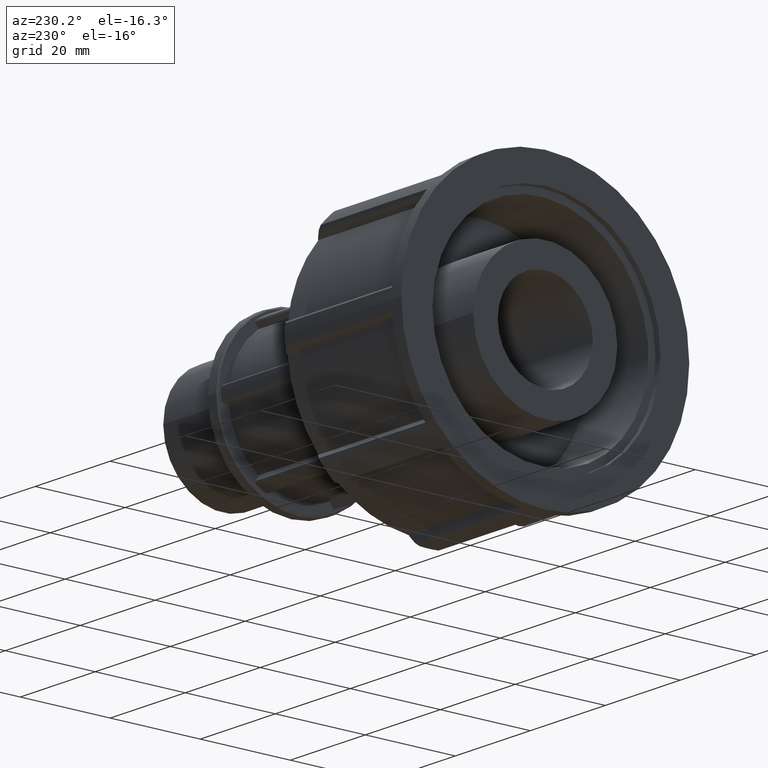
[diagram: clean part render]
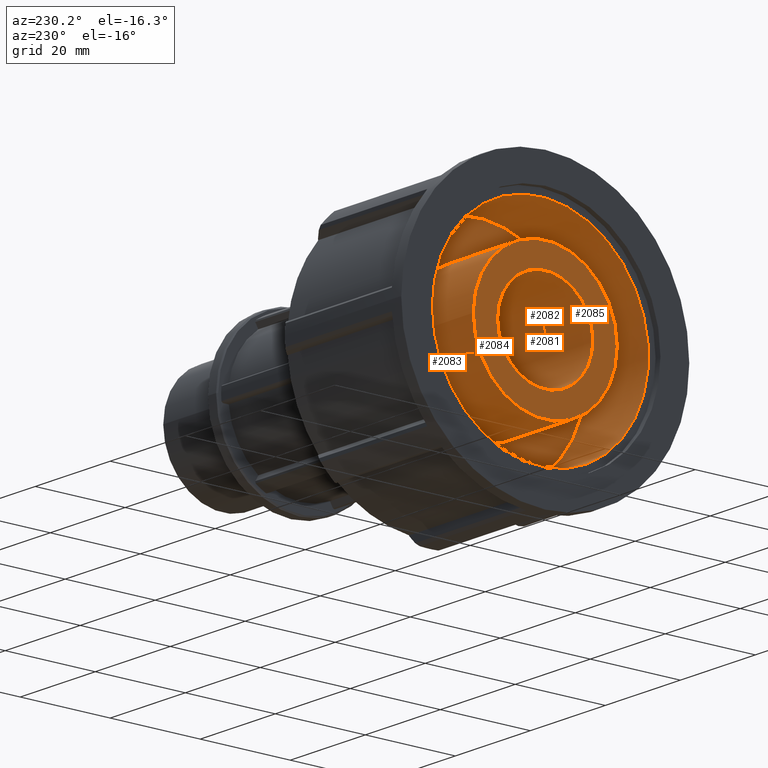
[diagram: same view with one multi-face feature highlighted, each face labeled with its STEP entity id]
A machine part, auxiliary view. The highlighted faces form ONE feature: a stepped (counterbored) hole: 3 coaxial cylindrical walls of radii 10.5764 -> 16 -> 24 mm joined by 2 annular planar shoulder face(s). The faces share edges in the B-rep.
Their STEP definitions:
[1] entity #2085 (Cylinder):
#72=FACE_BOUND('',#432,.T.);
#159=CIRCLE('',#2280,24.);
#160=CIRCLE('',#2282,24.);
#191=CYLINDRICAL_SURFACE('',#2281,24.);
#302=FACE_OUTER_BOUND('',#431,.T.);
#431=EDGE_LOOP('',(#1887));
#432=EDGE_LOOP('',(#1888));
#1007=VERTEX_POINT('',#3537);
#1008=VERTEX_POINT('',#3540);
#1304=EDGE_CURVE('',#1007,#1007,#159,.T.);
#1305=EDGE_CURVE('',#1008,#1008,#160,.T.);
#1887=ORIENTED_EDGE('',*,*,#1305,.F.);
#1888=ORIENTED_EDGE('',*,*,#1304,.T.);
#2085=ADVANCED_FACE('',(#302,#72),#191,.F.);
#2280=AXIS2_PLACEMENT_3D('',#3538,#2846,#2847);
#2281=AXIS2_PLACEMENT_3D('',#3539,#2848,#2849);
#2282=AXIS2_PLACEMENT_3D('',#3541,#2850,#2851);
#2846=DIRECTION('center_axis',(1.,0.,0.));
#2847=DIRECTION('ref_axis',(0.,0.,-1.));
#2848=DIRECTION('center_axis',(1.,0.,0.));
#2849=DIRECTION('ref_axis',(0.,1.,0.));
#2850=DIRECTION('center_axis',(1.,0.,0.));
#2851=DIRECTION('ref_axis',(0.,0.,-1.));
#3537=CARTESIAN_POINT('',(18.,24.,0.));
#3538=CARTESIAN_POINT('Origin',(18.,0.,0.));
#3539=CARTESIAN_POINT('Origin',(9.645,0.,0.));
#3540=CARTESIAN_POINT('',(1.29,24.,0.));
#3541=CARTESIAN_POINT('Origin',(1.29,0.,0.));
[2] entity #2083 (Cylinder):
#70=FACE_BOUND('',#428,.T.);
#157=CIRCLE('',#2276,16.);
#158=CIRCLE('',#2278,16.);
#190=CYLINDRICAL_SURFACE('',#2277,16.);
#300=FACE_OUTER_BOUND('',#427,.T.);
#427=EDGE_LOOP('',(#1883));
#428=EDGE_LOOP('',(#1884));
#1005=VERTEX_POINT('',#3531);
#1006=VERTEX_POINT('',#3534);
#1302=EDGE_CURVE('',#1005,#1005,#157,.T.);
#1303=EDGE_CURVE('',#1006,#1006,#158,.T.);
#1883=ORIENTED_EDGE('',*,*,#1303,.F.);
#1884=ORIENTED_EDGE('',*,*,#1302,.T.);
#2083=ADVANCED_FACE('',(#300,#70),#190,.T.);
#2276=AXIS2_PLACEMENT_3D('',#3532,#2838,#2839);
#2277=AXIS2_PLACEMENT_3D('',#3533,#2840,#2841);
#2278=AXIS2_PLACEMENT_3D('',#3535,#2842,#2843);
#2838=DIRECTION('center_axis',(1.,0.,0.));
#2839=DIRECTION('ref_axis',(0.,0.,-1.));
#2840=DIRECTION('center_axis',(1.,0.,0.));
#2841=DIRECTION('ref_axis',(0.,1.,0.));
#2842=DIRECTION('center_axis',(1.,0.,0.));
#2843=DIRECTION('ref_axis',(0.,0.,-1.));
#3531=CARTESIAN_POINT('',(0.,16.,0.));
#3532=CARTESIAN_POINT('Origin',(0.,0.,0.));
#3533=CARTESIAN_POINT('Origin',(9.,0.,0.));
#3534=CARTESIAN_POINT('',(18.,16.,0.));
#3535=CARTESIAN_POINT('Origin',(18.,0.,0.));
[3] entity #2081 (Cylinder):
#68=FACE_BOUND('',#424,.T.);
#155=CIRCLE('',#2272,10.5764);
#156=CIRCLE('',#2274,10.5764);
#189=CYLINDRICAL_SURFACE('',#2273,10.5764);
#298=FACE_OUTER_BOUND('',#423,.T.);
#423=EDGE_LOOP('',(#1879));
#424=EDGE_LOOP('',(#1880));
#1003=VERTEX_POINT('',#3525);
#1004=VERTEX_POINT('',#3528);
#1300=EDGE_CURVE('',#1003,#1003,#155,.T.);
#1301=EDGE_CURVE('',#1004,#1004,#156,.T.);
#1879=ORIENTED_EDGE('',*,*,#1301,.F.);
#1880=ORIENTED_EDGE('',*,*,#1300,.T.);
#2081=ADVANCED_FACE('',(#298,#68),#189,.F.);
#2272=AXIS2_PLACEMENT_3D('',#3526,#2830,#2831);
#2273=AXIS2_PLACEMENT_3D('',#3527,#2832,#2833);
#2274=AXIS2_PLACEMENT_3D('',#3529,#2834,#2835);
#2830=DIRECTION('center_axis',(1.,0.,0.));
#2831=DIRECTION('ref_axis',(0.,0.,-1.));
#2832=DIRECTION('center_axis',(1.,0.,0.));
#2833=DIRECTION('ref_axis',(0.,1.,0.));
#2834=DIRECTION('center_axis',(1.,0.,0.));
#2835=DIRECTION('ref_axis',(0.,0.,-1.));
#3525=CARTESIAN_POINT('',(65.3,10.5764,0.));
#3526=CARTESIAN_POINT('Origin',(65.3,0.,0.));
#3527=CARTESIAN_POINT('Origin',(32.65,0.,0.));
#3528=CARTESIAN_POINT('',(0.,10.5764,0.));
#3529=CARTESIAN_POINT('Origin',(0.,0.,0.));
[4] entity #2082 (Plane):
#69=FACE_BOUND('',#426,.T.);
#156=CIRCLE('',#2274,10.5764);
#157=CIRCLE('',#2276,16.);
#299=FACE_OUTER_BOUND('',#425,.T.);
#425=EDGE_LOOP('',(#1881));
#426=EDGE_LOOP('',(#1882));
#1004=VERTEX_POINT('',#3528);
#1005=VERTEX_POINT('',#3531);
#1301=EDGE_CURVE('',#1004,#1004,#156,.T.);
#1302=EDGE_CURVE('',#1005,#1005,#157,.T.);
#1881=ORIENTED_EDGE('',*,*,#1302,.F.);
#1882=ORIENTED_EDGE('',*,*,#1301,.T.);
#1973=PLANE('',#2275);
#2082=ADVANCED_FACE('',(#299,#69),#1973,.T.);
#2274=AXIS2_PLACEMENT_3D('',#3529,#2834,#2835);
#2275=AXIS2_PLACEMENT_3D('',#3530,#2836,#2837);
#2276=AXIS2_PLACEMENT_3D('',#3532,#2838,#2839);
#2834=DIRECTION('center_axis',(1.,0.,0.));
#2835=DIRECTION('ref_axis',(0.,0.,-1.));
#2836=DIRECTION('center_axis',(-1.,0.,0.));
#2837=DIRECTION('ref_axis',(0.,0.,1.));
#2838=DIRECTION('center_axis',(1.,0.,0.));
#2839=DIRECTION('ref_axis',(0.,0.,-1.));
#3528=CARTESIAN_POINT('',(0.,10.5764,0.));
#3529=CARTESIAN_POINT('Origin',(0.,0.,0.));
#3530=CARTESIAN_POINT('Origin',(0.,16.,0.));
#3531=CARTESIAN_POINT('',(0.,16.,0.));
#3532=CARTESIAN_POINT('Origin',(0.,0.,0.));
[5] entity #2084 (Plane):
#71=FACE_BOUND('',#430,.T.);
#158=CIRCLE('',#2278,16.);
#159=CIRCLE('',#2280,24.);
#301=FACE_OUTER_BOUND('',#429,.T.);
#429=EDGE_LOOP('',(#1885));
#430=EDGE_LOOP('',(#1886));
#1006=VERTEX_POINT('',#3534);
#1007=VERTEX_POINT('',#3537);
#1303=EDGE_CURVE('',#1006,#1006,#158,.T.);
#1304=EDGE_CURVE('',#1007,#1007,#159,.T.);
#1885=ORIENTED_EDGE('',*,*,#1304,.F.);
#1886=ORIENTED_EDGE('',*,*,#1303,.T.);
#1974=PLANE('',#2279);
#2084=ADVANCED_FACE('',(#301,#71),#1974,.T.);
#2278=AXIS2_PLACEMENT_3D('',#3535,#2842,#2843);
#2279=AXIS2_PLACEMENT_3D('',#3536,#2844,#2845);
#2280=AXIS2_PLACEMENT_3D('',#3538,#2846,#2847);
#2842=DIRECTION('center_axis',(1.,0.,0.));
#2843=DIRECTION('ref_axis',(0.,0.,-1.));
#2844=DIRECTION('center_axis',(-1.,0.,0.));
#2845=DIRECTION('ref_axis',(0.,0.,1.));
#2846=DIRECTION('center_axis',(1.,0.,0.));
#2847=DIRECTION('ref_axis',(0.,0.,-1.));
#3534=CARTESIAN_POINT('',(18.,16.,0.));
#3535=CARTESIAN_POINT('Origin',(18.,0.,0.));
#3536=CARTESIAN_POINT('Origin',(18.,24.,0.));
#3537=CARTESIAN_POINT('',(18.,24.,0.));
#3538=CARTESIAN_POINT('Origin',(18.,0.,0.));